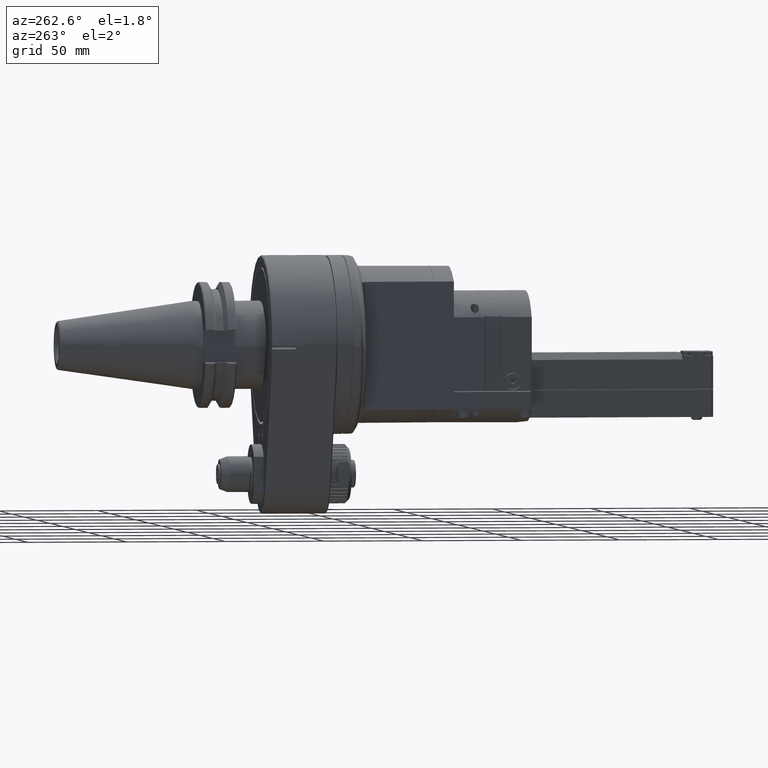
[diagram: clean part render]
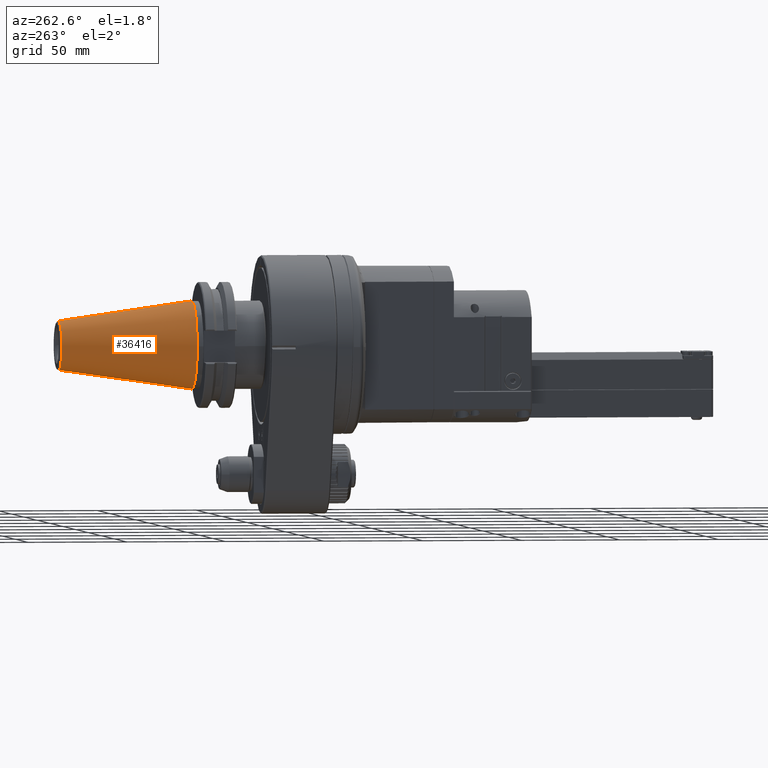
[diagram: same view with one face highlighted and labeled with its STEP entity id]
A machine part, auxiliary view. The second image highlights one B-rep face of the part: STEP entity #36416.
In plain terms, the highlighted conical surface has half-angle 8.3 deg.
Its self-contained STEP definition (entity closure, byte-faithful):
#1728=CONICAL_SURFACE('',#40211,17.31065452764,0.144862327915529);
#4452=LINE('',#76213,#7151);
#7151=VECTOR('',#50384,17.31065452764);
#9902=FACE_OUTER_BOUND('',#12184,.T.);
#12184=EDGE_LOOP('',(#33382,#33383,#33384,#33385,#33386,#33387));
#13817=CIRCLE('',#40209,22.225);
#13818=CIRCLE('',#40210,22.225);
#13819=CIRCLE('',#40212,12.39630905528);
#13820=CIRCLE('',#40213,12.39630905528);
#17291=VERTEX_POINT('',#76206);
#17292=VERTEX_POINT('',#76207);
#17293=VERTEX_POINT('',#76212);
#17294=VERTEX_POINT('',#76214);
#22657=EDGE_CURVE('',#17291,#17292,#13817,.T.);
#22659=EDGE_CURVE('',#17292,#17291,#13818,.T.);
#22660=EDGE_CURVE('',#17291,#17293,#4452,.T.);
#22661=EDGE_CURVE('',#17293,#17294,#13819,.T.);
#22662=EDGE_CURVE('',#17294,#17293,#13820,.T.);
#33382=ORIENTED_EDGE('',*,*,#22657,.F.);
#33383=ORIENTED_EDGE('',*,*,#22660,.T.);
#33384=ORIENTED_EDGE('',*,*,#22661,.T.);
#33385=ORIENTED_EDGE('',*,*,#22662,.T.);
#33386=ORIENTED_EDGE('',*,*,#22660,.F.);
#33387=ORIENTED_EDGE('',*,*,#22659,.F.);
#36416=ADVANCED_FACE('',(#9902),#1728,.T.);
#40209=AXIS2_PLACEMENT_3D('',#76208,#50377,#50378);
#40210=AXIS2_PLACEMENT_3D('',#76210,#50380,#50381);
#40211=AXIS2_PLACEMENT_3D('',#76211,#50382,#50383);
#40212=AXIS2_PLACEMENT_3D('',#76215,#50385,#50386);
#40213=AXIS2_PLACEMENT_3D('',#76216,#50387,#50388);
#50377=DIRECTION('center_axis',(0.,-1.,0.));
#50378=DIRECTION('ref_axis',(-1.,0.,0.));
#50380=DIRECTION('center_axis',(0.,-1.,0.));
#50381=DIRECTION('ref_axis',(-1.,0.,0.));
#50382=DIRECTION('center_axis',(0.,-1.,0.));
#50383=DIRECTION('ref_axis',(-1.,0.,0.));
#50384=DIRECTION('',(-0.144356201000973,0.989525789068969,-1.76785359492914E-17));
#50385=DIRECTION('center_axis',(0.,-1.,0.));
#50386=DIRECTION('ref_axis',(1.,0.,2.949518067144E-12));
#50387=DIRECTION('center_axis',(0.,-1.,0.));
#50388=DIRECTION('ref_axis',(1.,0.,2.949518067144E-12));
#76206=CARTESIAN_POINT('',(22.225,67.9999999999999,3.277788040989E-11));
#76207=CARTESIAN_POINT('',(-22.225,67.9999999999998,2.72177751110499E-15));
#76208=CARTESIAN_POINT('Origin',(0.,67.9999999999998,0.));
#76210=CARTESIAN_POINT('Origin',(0.,67.9999999999998,0.));
#76211=CARTESIAN_POINT('Origin',(0.,101.6866137206,0.));
#76212=CARTESIAN_POINT('',(12.3963090552815,135.3732274412,1.51811002057918E-15));
#76213=CARTESIAN_POINT('',(17.31065452764,101.6866137206,2.119943765842E-15));
#76214=CARTESIAN_POINT('',(12.39538385673,135.3732274412,0.1514504484024));
#76215=CARTESIAN_POINT('Origin',(0.,135.3732274412,0.));
#76216=CARTESIAN_POINT('Origin',(0.,135.3732274412,0.));